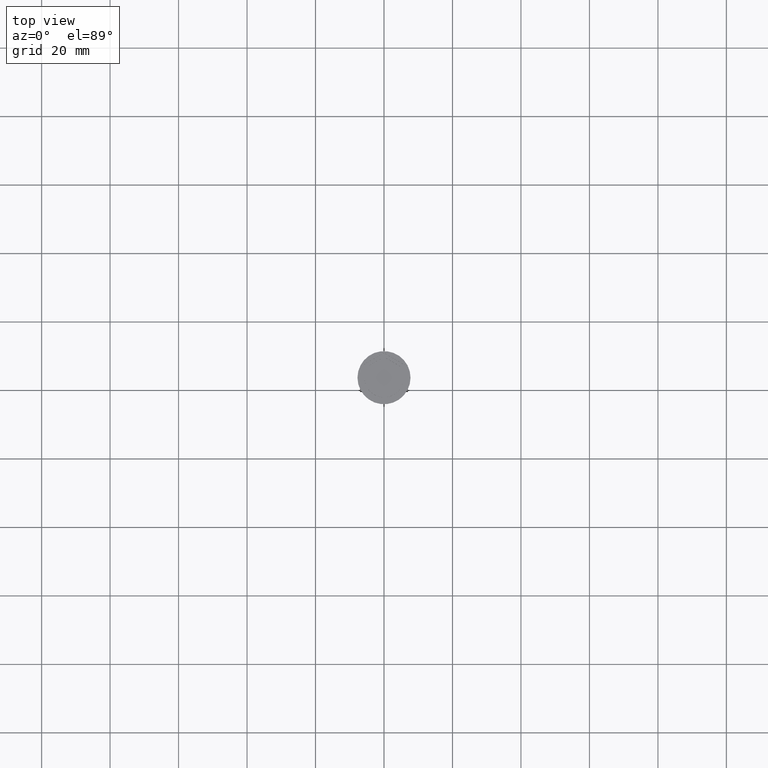
[diagram: clean part render]
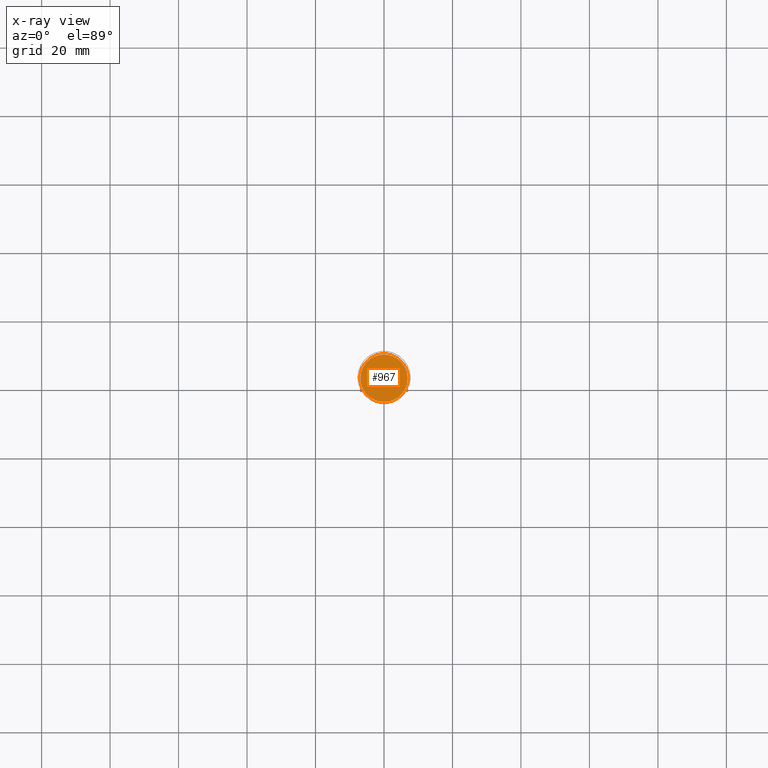
[diagram: x-ray — body ghosted, one internal face saturated and labeled with its STEP entity id]
A machine part, top view, then the same camera in x-ray: the body is ghosted and one INTERNAL B-rep face — a face not visible from any outside direction — is saturated and labeled: STEP entity #967.
In plain terms, the highlighted planar face has unit normal (0, 0, -1).
Its self-contained STEP definition (entity closure, byte-faithful):
#318 = PLANE ( 'NONE',  #775 ) ;
#372 = VERTEX_POINT ( 'NONE', #1896 ) ;
#639 = ORIENTED_EDGE ( 'NONE', *, *, #1316, .T. ) ;
#640 = CARTESIAN_POINT ( 'NONE',  ( 0.000000000000000000, 0.000000000000000000, -10.50000000000000178 ) ) ;
#641 = ORIENTED_EDGE ( 'NONE', *, *, #1893, .T. ) ;
#775 = AXIS2_PLACEMENT_3D ( 'NONE', #827, #1570, #1554 ) ;
#827 = CARTESIAN_POINT ( 'NONE',  ( 0.000000000000000000, 0.000000000000000000, -10.50000000000000178 ) ) ;
#835 = DIRECTION ( 'NONE',  ( -0.000000000000000000, -0.000000000000000000, 1.000000000000000000 ) ) ;
#967 = ADVANCED_FACE ( 'NONE', ( #1806 ), #318, .F. ) ;
#977 = CARTESIAN_POINT ( 'NONE',  ( 6.950000000000001066, 8.694992273946209718E-16, -10.50000000000000178 ) ) ;
#1218 = CARTESIAN_POINT ( 'NONE',  ( 0.000000000000000000, 0.000000000000000000, -10.50000000000000178 ) ) ;
#1243 = DIRECTION ( 'NONE',  ( -0.000000000000000000, -0.000000000000000000, 1.000000000000000000 ) ) ;
#1270 = CIRCLE ( 'NONE', #1813, 6.950000000000001066 ) ;
#1303 = VERTEX_POINT ( 'NONE', #977 ) ;
#1316 = EDGE_CURVE ( 'NONE', #1303, #372, #2064, .T. ) ;
#1554 = DIRECTION ( 'NONE',  ( -1.000000000000000000, 0.000000000000000000, -0.000000000000000000 ) ) ;
#1570 = DIRECTION ( 'NONE',  ( 0.000000000000000000, 0.000000000000000000, -1.000000000000000000 ) ) ;
#1653 = AXIS2_PLACEMENT_3D ( 'NONE', #640, #835, #1894 ) ;
#1806 = FACE_OUTER_BOUND ( 'NONE', #2118, .T. ) ;
#1813 = AXIS2_PLACEMENT_3D ( 'NONE', #1218, #1243, #2309 ) ;
#1893 = EDGE_CURVE ( 'NONE', #372, #1303, #1270, .T. ) ;
#1894 = DIRECTION ( 'NONE',  ( -1.000000000000000000, 0.000000000000000000, 0.000000000000000000 ) ) ;
#1896 = CARTESIAN_POINT ( 'NONE',  ( -6.950000000000001066, 0.000000000000000000, -10.50000000000000178 ) ) ;
#2064 = CIRCLE ( 'NONE', #1653, 6.950000000000001066 ) ;
#2118 = EDGE_LOOP ( 'NONE', ( #641, #639 ) ) ;
#2309 = DIRECTION ( 'NONE',  ( -1.000000000000000000, 0.000000000000000000, 0.000000000000000000 ) ) ;